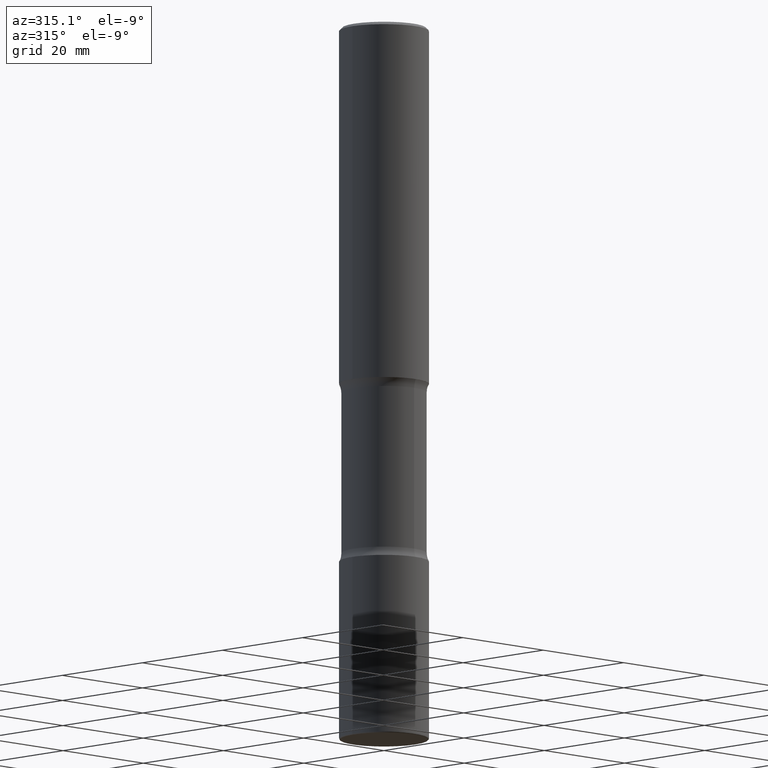
[diagram: clean part render]
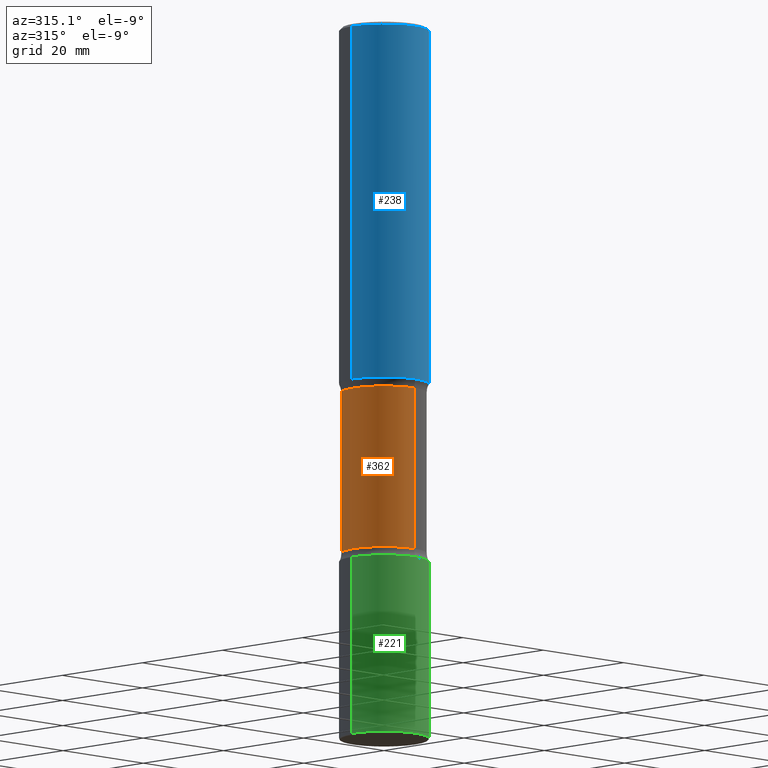
[diagram: same view with three faces highlighted in distinct colors, each labeled with its STEP entity id]
A machine part, auxiliary view with three faces highlighted in distinct colors.
Their STEP definitions:

[orange] entity #362 — the highlighted cylindrical surface (partial cylindrical patch) has radius 7.5406 mm, axis along (0, -0, -1).
#33 = CARTESIAN_POINT ( 'NONE',  ( 2.073067044938172750E-15, 0.2968749999999910627, -2.560515364784492043 ) ) ;
#35 = DIRECTION ( 'NONE',  ( 6.982962677686265922E-15, 1.000000000000000000, -3.680805717779212911E-15 ) ) ;
#47 = CIRCLE ( 'NONE', #364, 0.2968750000000003886 ) ;
#68 = ORIENTED_EDGE ( 'NONE', *, *, #91, .T. ) ;
#89 = VERTEX_POINT ( 'NONE', #543 ) ;
#91 = EDGE_CURVE ( 'NONE', #89, #506, #47, .T. ) ;
#96 = CARTESIAN_POINT ( 'NONE',  ( 1.249789967597276859E-28, -1.706995561143730792E-14, -5.000000000000000000 ) ) ;
#106 = EDGE_CURVE ( 'NONE', #506, #483, #511, .T. ) ;
#124 = EDGE_LOOP ( 'NONE', ( #297, #68, #306, #330 ) ) ;
#151 = VECTOR ( 'NONE', #549, 39.37007874015748143 ) ;
#155 = DIRECTION ( 'NONE',  ( 2.661913322222804749E-29, -3.181520472620407774E-15, -1.000000000000000000 ) ) ;
#158 = CARTESIAN_POINT ( 'NONE',  ( 6.004203026134765083E-29, -9.308685301856234143E-15, -2.560515364784490711 ) ) ;
#174 = CARTESIAN_POINT ( 'NONE',  ( -2.090307983695923198E-15, -0.2968750000000130451, -3.689484635215508401 ) ) ;
#214 = DIRECTION ( 'NONE',  ( 2.661913322222804749E-29, -3.181520472620407774E-15, -1.000000000000000000 ) ) ;
#235 = CARTESIAN_POINT ( 'NONE',  ( 2.073067044938201149E-15, 0.2968749999999872324, -3.689484635215510622 ) ) ;
#244 = VERTEX_POINT ( 'NONE', #174 ) ;
#297 = ORIENTED_EDGE ( 'NONE', *, *, #559, .F. ) ;
#305 = CYLINDRICAL_SURFACE ( 'NONE', #490, 0.2968750000000002220 ) ;
#306 = ORIENTED_EDGE ( 'NONE', *, *, #106, .T. ) ;
#326 = CARTESIAN_POINT ( 'NONE',  ( -2.036710343088299976E-15, -0.2968750000000173195, -4.999999999999999112 ) ) ;
#327 = CARTESIAN_POINT ( 'NONE',  ( 2.073067044938236647E-15, 0.2968749999999831801, -5.000000000000000888 ) ) ;
#330 = ORIENTED_EDGE ( 'NONE', *, *, #453, .F. ) ;
#331 = AXIS2_PLACEMENT_3D ( 'NONE', #538, #443, #406 ) ;
#340 = CIRCLE ( 'NONE', #331, 0.2968750000000001110 ) ;
#352 = FACE_OUTER_BOUND ( 'NONE', #124, .T. ) ;
#362 = ADVANCED_FACE ( 'NONE', ( #352 ), #305, .T. ) ;
#364 = AXIS2_PLACEMENT_3D ( 'NONE', #158, #155, #35 ) ;
#406 = DIRECTION ( 'NONE',  ( 6.982962677686265133E-15, 1.000000000000000000, -3.680805717779216066E-15 ) ) ;
#443 = DIRECTION ( 'NONE',  ( 2.661913322222804749E-29, -3.181520472620407774E-15, -1.000000000000000000 ) ) ;
#453 = EDGE_CURVE ( 'NONE', #244, #483, #340, .T. ) ;
#482 = DIRECTION ( 'NONE',  ( 6.982962677686265133E-15, 1.000000000000000000, -3.680805717779215277E-15 ) ) ;
#483 = VERTEX_POINT ( 'NONE', #235 ) ;
#490 = AXIS2_PLACEMENT_3D ( 'NONE', #96, #214, #482 ) ;
#503 = DIRECTION ( 'NONE',  ( 2.661913322222804749E-29, -3.181520472620407379E-15, -1.000000000000000000 ) ) ;
#505 = LINE ( 'NONE', #326, #151 ) ;
#506 = VERTEX_POINT ( 'NONE', #33 ) ;
#511 = LINE ( 'NONE', #327, #525 ) ;
#525 = VECTOR ( 'NONE', #503, 39.37007874015748143 ) ;
#538 = CARTESIAN_POINT ( 'NONE',  ( 9.009421367475253036E-29, -1.290052414869184702E-14, -3.689484635215509289 ) ) ;
#543 = CARTESIAN_POINT ( 'NONE',  ( -2.090307983695956331E-15, -0.2968750000000097145, -2.560515364784489822 ) ) ;
#549 = DIRECTION ( 'NONE',  ( 2.661913322222804749E-29, -3.181520472620407379E-15, -1.000000000000000000 ) ) ;
#559 = EDGE_CURVE ( 'NONE', #89, #244, #505, .T. ) ;

[blue] entity #238 — the highlighted cylindrical surface (partial cylindrical patch) has radius 7.9375 mm, axis along (-0, 0, 1).
#42 = DIRECTION ( 'NONE',  ( -2.445468806185136597E-29, 3.491481338843145583E-15, 1.000000000000000000 ) ) ;
#43 = CARTESIAN_POINT ( 'NONE',  ( 0.000000000000000000, 0.000000000000000000, 0.000000000000000000 ) ) ;
#48 = VECTOR ( 'NONE', #226, 39.37007874015748143 ) ;
#54 = CARTESIAN_POINT ( 'NONE',  ( 4.890937612370273159E-31, -6.982962677686291609E-17, -0.02000000000000000042 ) ) ;
#87 = DIRECTION ( 'NONE',  ( -2.445468806185136597E-29, 3.491481338843145583E-15, 1.000000000000000000 ) ) ;
#107 = CARTESIAN_POINT ( 'NONE',  ( -0.3124999999999998890, -2.178820437692049462E-15, -2.500000000000000000 ) ) ;
#130 = DIRECTION ( 'NONE',  ( -2.445468806185136877E-29, 3.491481338843145188E-15, 1.000000000000000000 ) ) ;
#137 = DIRECTION ( 'NONE',  ( 1.000000000000000000, -6.982962677686267499E-15, 0.000000000000000000 ) ) ;
#149 = EDGE_CURVE ( 'NONE', #474, #159, #223, .T. ) ;
#159 = VERTEX_POINT ( 'NONE', #462 ) ;
#164 = VERTEX_POINT ( 'NONE', #427 ) ;
#166 = CIRCLE ( 'NONE', #388, 0.3124999999999996669 ) ;
#183 = EDGE_LOOP ( 'NONE', ( #454, #319, #339, #229 ) ) ;
#203 = DIRECTION ( 'NONE',  ( 1.000000000000000000, -6.982962677686266711E-15, 4.876176775795936353E-29 ) ) ;
#212 = DIRECTION ( 'NONE',  ( -2.445468806185136597E-29, 3.491481338843145583E-15, 1.000000000000000000 ) ) ;
#223 = CIRCLE ( 'NONE', #547, 0.3124999999999998890 ) ;
#226 = DIRECTION ( 'NONE',  ( -2.445468806185136877E-29, 3.491481338843145188E-15, 1.000000000000000000 ) ) ;
#229 = ORIENTED_EDGE ( 'NONE', *, *, #309, .F. ) ;
#238 = ADVANCED_FACE ( 'NONE', ( #253 ), #243, .T. ) ;
#239 = CARTESIAN_POINT ( 'NONE',  ( 6.113672015462842613E-29, -8.728703347107864943E-15, -2.500000000000000000 ) ) ;
#242 = EDGE_CURVE ( 'NONE', #159, #415, #473, .T. ) ;
#243 = CYLINDRICAL_SURFACE ( 'NONE', #404, 0.3124999999999997224 ) ;
#253 = FACE_OUTER_BOUND ( 'NONE', #183, .T. ) ;
#266 = LINE ( 'NONE', #357, #48 ) ;
#309 = EDGE_CURVE ( 'NONE', #164, #415, #166, .T. ) ;
#312 = CARTESIAN_POINT ( 'NONE',  ( 0.3124999999999996669, -2.213735251080464545E-15, -0.02000000000000000042 ) ) ;
#319 = ORIENTED_EDGE ( 'NONE', *, *, #149, .T. ) ;
#339 = ORIENTED_EDGE ( 'NONE', *, *, #242, .T. ) ;
#357 = CARTESIAN_POINT ( 'NONE',  ( -0.3124999999999997224, 2.220446049250311109E-15, -1.537167215704656831E-29 ) ) ;
#388 = AXIS2_PLACEMENT_3D ( 'NONE', #54, #212, #137 ) ;
#404 = AXIS2_PLACEMENT_3D ( 'NONE', #43, #87, #203 ) ;
#415 = VERTEX_POINT ( 'NONE', #312 ) ;
#427 = CARTESIAN_POINT ( 'NONE',  ( -0.3124999999999996669, 2.112346210000093077E-15, -0.02000000000000000042 ) ) ;
#433 = EDGE_CURVE ( 'NONE', #474, #164, #266, .T. ) ;
#442 = VECTOR ( 'NONE', #130, 39.37007874015748143 ) ;
#454 = ORIENTED_EDGE ( 'NONE', *, *, #433, .F. ) ;
#462 = CARTESIAN_POINT ( 'NONE',  ( 0.3124999999999998890, -1.091087918388482329E-14, -2.500000000000000000 ) ) ;
#466 = DIRECTION ( 'NONE',  ( 1.000000000000000000, -6.982962677686268288E-15, 0.000000000000000000 ) ) ;
#473 = LINE ( 'NONE', #527, #442 ) ;
#474 = VERTEX_POINT ( 'NONE', #107 ) ;
#527 = CARTESIAN_POINT ( 'NONE',  ( 0.3124999999999997224, -2.182175836776956375E-15, 1.523805242436228674E-29 ) ) ;
#547 = AXIS2_PLACEMENT_3D ( 'NONE', #239, #42, #466 ) ;

[green] entity #221 — the highlighted cylindrical surface (partial cylindrical patch) has radius 7.9375 mm, axis along (-0, 0, 1).
#16 = CARTESIAN_POINT ( 'NONE',  ( -0.3125000000000000000, 2.220446049250313081E-15, -1.537167215704658232E-29 ) ) ;
#25 = VECTOR ( 'NONE', #550, 39.37007874015748143 ) ;
#32 = ORIENTED_EDGE ( 'NONE', *, *, #407, .F. ) ;
#40 = ORIENTED_EDGE ( 'NONE', *, *, #317, .T. ) ;
#45 = EDGE_CURVE ( 'NONE', #392, #204, #419, .T. ) ;
#46 = DIRECTION ( 'NONE',  ( 1.000000000000000000, -6.982962677686266711E-15, 4.876176775795936353E-29 ) ) ;
#56 = CARTESIAN_POINT ( 'NONE',  ( 0.3125000000000000555, -1.527523085743875734E-14, -3.750000000000000000 ) ) ;
#61 = LINE ( 'NONE', #16, #25 ) ;
#63 = AXIS2_PLACEMENT_3D ( 'NONE', #228, #410, #82 ) ;
#65 = CARTESIAN_POINT ( 'NONE',  ( -0.3124999999999999445, -1.520204583157698358E-14, -4.990000000000000213 ) ) ;
#70 = AXIS2_PLACEMENT_3D ( 'NONE', #311, #222, #94 ) ;
#82 = DIRECTION ( 'NONE',  ( 1.000000000000000000, -6.982962677686268288E-15, 0.000000000000000000 ) ) ;
#90 = DIRECTION ( 'NONE',  ( -2.445468806185136877E-29, 3.491481338843145188E-15, 1.000000000000000000 ) ) ;
#94 = DIRECTION ( 'NONE',  ( 1.000000000000000000, -6.982962677686265133E-15, 0.000000000000000000 ) ) ;
#127 = DIRECTION ( 'NONE',  ( -2.445468806185136597E-29, 3.491481338843145583E-15, 1.000000000000000000 ) ) ;
#145 = ORIENTED_EDGE ( 'NONE', *, *, #216, .T. ) ;
#148 = ORIENTED_EDGE ( 'NONE', *, *, #45, .F. ) ;
#178 = CARTESIAN_POINT ( 'NONE',  ( -0.3125000000000000555, -1.303732740149423396E-14, -3.750000000000000000 ) ) ;
#204 = VERTEX_POINT ( 'NONE', #56 ) ;
#216 = EDGE_CURVE ( 'NONE', #382, #204, #341, .T. ) ;
#221 = ADVANCED_FACE ( 'NONE', ( #475 ), #519, .T. ) ;
#222 = DIRECTION ( 'NONE',  ( -2.445468806185136597E-29, 3.491481338843145583E-15, 1.000000000000000000 ) ) ;
#228 = CARTESIAN_POINT ( 'NONE',  ( 9.170508023194262238E-29, -1.309305502066179741E-14, -3.750000000000000000 ) ) ;
#230 = AXIS2_PLACEMENT_3D ( 'NONE', #257, #127, #46 ) ;
#257 = CARTESIAN_POINT ( 'NONE',  ( 0.000000000000000000, 0.000000000000000000, 0.000000000000000000 ) ) ;
#286 = EDGE_LOOP ( 'NONE', ( #32, #40, #145, #148 ) ) ;
#294 = CARTESIAN_POINT ( 'NONE',  ( 0.3125000000000000000, -2.182175836776958347E-15, 1.523805242436230075E-29 ) ) ;
#311 = CARTESIAN_POINT ( 'NONE',  ( 1.220288934286383144E-28, -1.742249188082729666E-14, -4.990000000000000213 ) ) ;
#317 = EDGE_CURVE ( 'NONE', #477, #382, #365, .T. ) ;
#341 = LINE ( 'NONE', #294, #432 ) ;
#365 = CIRCLE ( 'NONE', #70, 0.3124999999999998890 ) ;
#382 = VERTEX_POINT ( 'NONE', #445 ) ;
#392 = VERTEX_POINT ( 'NONE', #178 ) ;
#407 = EDGE_CURVE ( 'NONE', #477, #392, #61, .T. ) ;
#410 = DIRECTION ( 'NONE',  ( -2.445468806185136597E-29, 3.491481338843145583E-15, 1.000000000000000000 ) ) ;
#419 = CIRCLE ( 'NONE', #63, 0.3125000000000000555 ) ;
#432 = VECTOR ( 'NONE', #90, 39.37007874015748143 ) ;
#445 = CARTESIAN_POINT ( 'NONE',  ( 0.3124999999999999445, -1.960466771760425343E-14, -4.990000000000000213 ) ) ;
#475 = FACE_OUTER_BOUND ( 'NONE', #286, .T. ) ;
#477 = VERTEX_POINT ( 'NONE', #65 ) ;
#519 = CYLINDRICAL_SURFACE ( 'NONE', #230, 0.3125000000000000000 ) ;
#550 = DIRECTION ( 'NONE',  ( -2.445468806185136877E-29, 3.491481338843145188E-15, 1.000000000000000000 ) ) ;